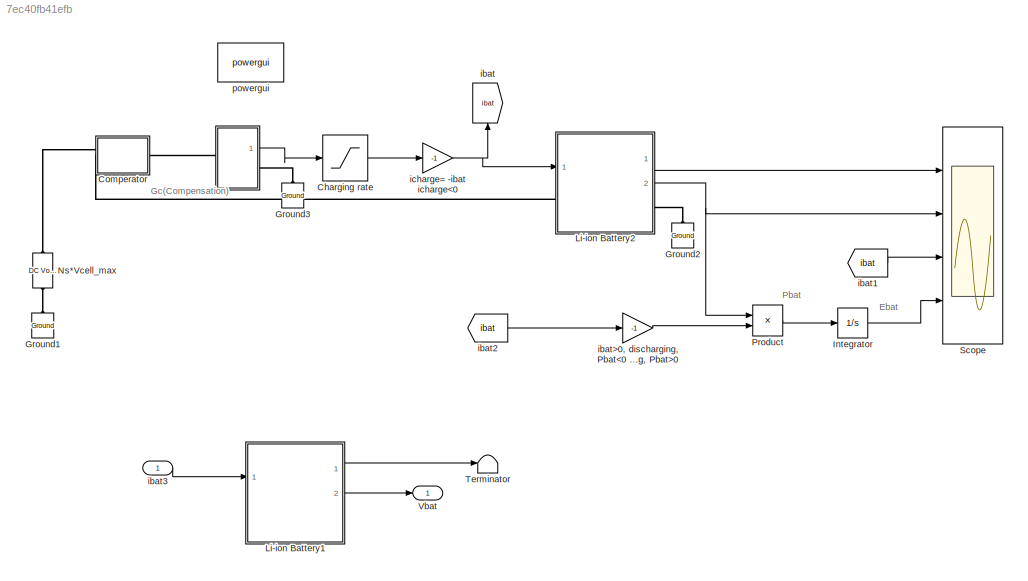
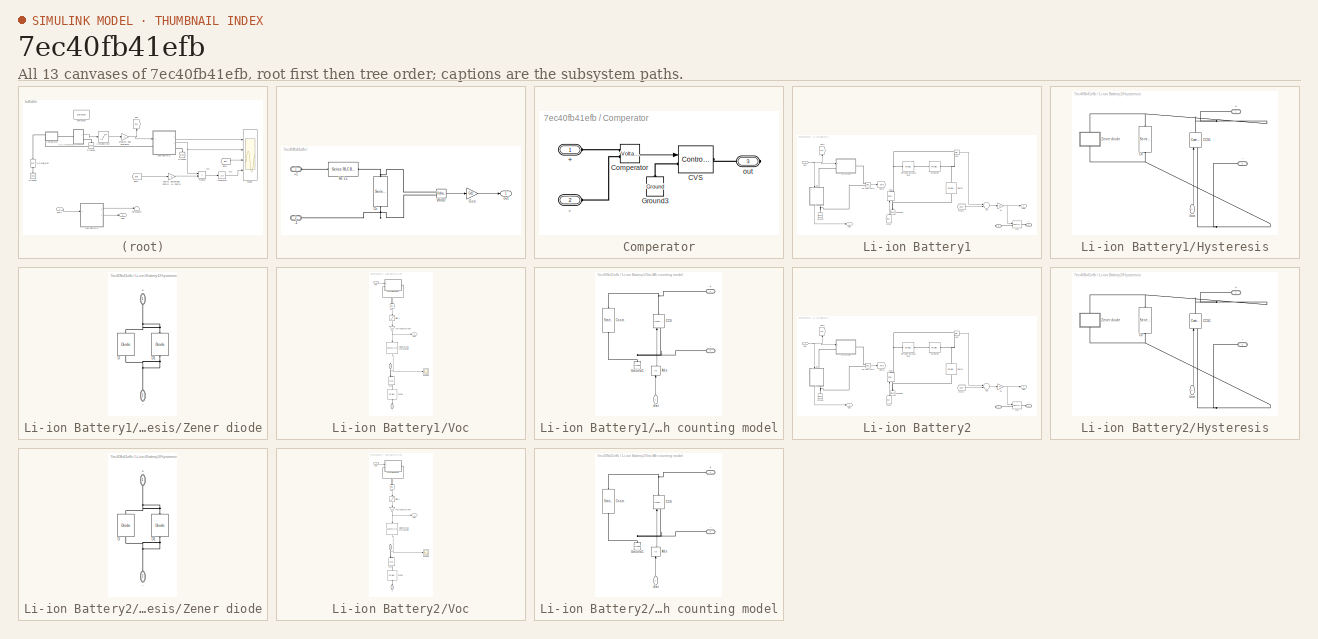
[diagram: thumbnail index - all 13 canvases of the model, root first then tree order]
MODEL slx_7ec40fb41efb
KIND model
CONFIG AbsTol = auto
CONFIG FixedStep = auto
CONFIG MaxStep = auto
CONFIG MinStep = auto
CONFIG RelTol = 1e-3
CONFIG SampleTimeConstraint = Unconstrained
CONFIG Solver = VariableStepAuto
CONFIG SolverMode = Auto
CONFIG SolverName = VariableStepAuto
CONFIG StartTime = 0.0
CONFIG StopTime = 6000
BLOCK [SubSystem]   
  Ports = [0, 1, 0, 0, 0, 1, 1]
  RequestExecContextInheritance = off
  Variant = off
BLOCK [PMIOPort]   /+1
  Port = 1
  Side = Left
BLOCK [PMIOPort]   /-1
  Port = 2
  Side = Right
BLOCK [Reference]   /Cc  REF=powerlib/Elements/Series RLC Branch
  Ports = [0, 0, 0, 0, 0, 1, 1]
  SourceBlock = powerlib/Elements/Series RLC Branch
  SourceType = Series RLC Branch
BLOCK [Gain]   /Gco
  Gain = Gc0
  OutDataTypeStr = Inherit: Inherit via internal rule
  ParamDataTypeStr = Inherit: Inherit via internal rule
  SaturateOnIntegerOverflow = off
BLOCK [Reference]   /Rc         Lc  REF=powerlib/Elements/Series RLC Branch
  Ports = [0, 0, 0, 0, 0, 1, 1]
  SourceBlock = powerlib/Elements/Series RLC Branch
  SourceType = Series RLC Branch
BLOCK [Reference]   /Vfilter   REF=powerlib/Measurements/Voltage Measurement
  Ports = [0, 1, 0, 0, 0, 2]
  SourceBlock = powerlib/Measurements/Voltage Measurement
  SourceType = Voltage Measurement
  UserDataPersistent = on
BLOCK [Outport]   /out 
  IconDisplay = Port number
BLOCK [Saturate] Charging rate
  InputPortMap = u0
  LowerLimit = 0
  Ports = [1, 1]
  UpperLimit = Crate
BLOCK [SubSystem] Comperator
  Ports = [0, 0, 0, 0, 0, 2, 1]
  RequestExecContextInheritance = off
  Variant = off
BLOCK [PMIOPort] Comperator/+
  Port = 1
  Side = Left
BLOCK [PMIOPort] Comperator/-
  Port = 2
  Side = Left
BLOCK [Reference] Comperator/CVS  REF=powerlib/Electrical
Sources/Controlled Voltage Source
  Ports = [1, 0, 0, 0, 0, 1, 1]
  SourceBlock = powerlib/Electrical\nSources/Controlled Voltage Source
  SourceType = Controlled Voltage Source
BLOCK [Reference] Comperator/Comperator  REF=powerlib/Measurements/Voltage Measurement
  Ports = [0, 1, 0, 0, 0, 2]
  SourceBlock = powerlib/Measurements/Voltage Measurement
  SourceType = Voltage Measurement
  UserDataPersistent = on
BLOCK [Reference] Comperator/Ground3  REF=powerlib/Elements/Ground
  Ports = [0, 0, 0, 0, 0, 1]
  SourceBlock = powerlib/Elements/Ground
  SourceType = Ground
BLOCK [PMIOPort] Comperator/out
  Port = 3
  Side = Right
BLOCK [Reference] Ground1  REF=powerlib/Elements/Ground
  Ports = [0, 0, 0, 0, 0, 1]
  SourceBlock = powerlib/Elements/Ground
  SourceType = Ground
BLOCK [Reference] Ground2  REF=powerlib/Elements/Ground
  Ports = [0, 0, 0, 0, 0, 1]
  SourceBlock = powerlib/Elements/Ground
  SourceType = Ground
BLOCK [Reference] Ground3  REF=powerlib/Elements/Ground
  Ports = [0, 0, 0, 0, 0, 1]
  SourceBlock = powerlib/Elements/Ground
  SourceType = Ground
BLOCK [Integrator] Integrator
  Ports = [1, 1]
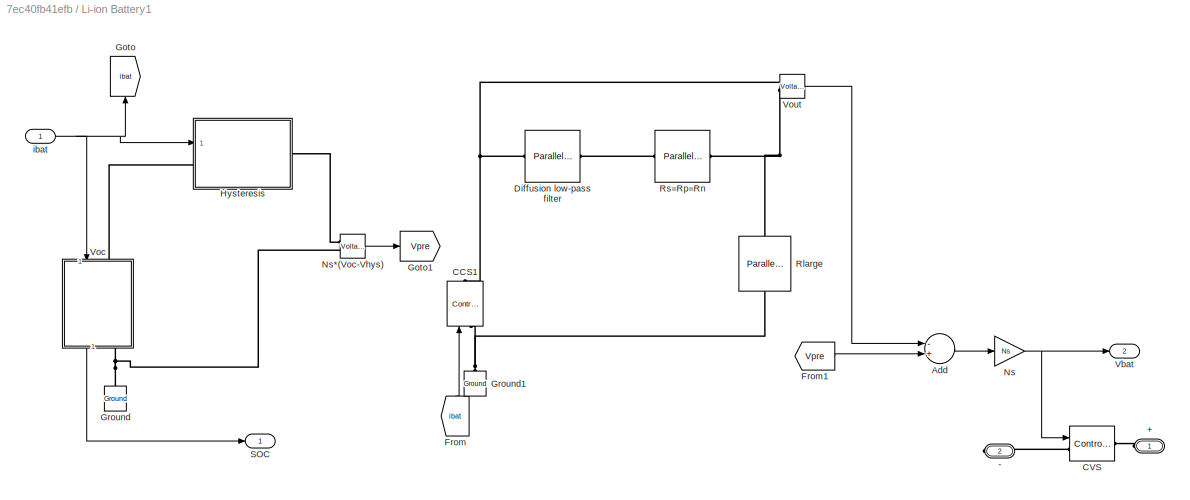
BLOCK [SubSystem] Li-ion Battery1
  Ports = [1, 2, 0, 0, 0, 1, 1]
  RequestExecContextInheritance = off
  Variant = off
BLOCK [PMIOPort] Li-ion Battery1/+
  Port = 1
  Side = Left
BLOCK [PMIOPort] Li-ion Battery1/-
  Port = 2
  Side = Right
BLOCK [Sum] Li-ion Battery1/Add
  InputSameDT = off
  Inputs = -+
  OutDataTypeStr = Inherit: Inherit via internal rule
  Ports = [2, 1]
  SaturateOnIntegerOverflow = off
BLOCK [Reference] Li-ion Battery1/CCS1  REF=powerlib/Electrical
Sources/Controlled Current Source
  Ports = [1, 0, 0, 0, 0, 1, 1]
  SourceBlock = powerlib/Electrical\nSources/Controlled Current Source
  SourceType = Controlled Current Source
BLOCK [Reference] Li-ion Battery1/CVS  REF=powerlib/Electrical
Sources/Controlled Voltage Source
  Ports = [1, 0, 0, 0, 0, 1, 1]
  SourceBlock = powerlib/Electrical\nSources/Controlled Voltage Source
  SourceType = Controlled Voltage Source
BLOCK [Reference] Li-ion Battery1/Diffusion low-pass filter  REF=powerlib/Elements/Parallel RLC Branch
  AttributesFormatString = \n
  Ports = [0, 0, 0, 0, 0, 1, 1]
  SourceBlock = powerlib/Elements/Parallel RLC Branch
  SourceType = Parallel RLC Branch
BLOCK [From] Li-ion Battery1/From
  GotoTag = ibat
BLOCK [From] Li-ion Battery1/From1
  GotoTag = Vpre
BLOCK [Goto] Li-ion Battery1/Goto
  GotoTag = ibat
BLOCK [Goto] Li-ion Battery1/Goto1
  GotoTag = Vpre
BLOCK [Reference] Li-ion Battery1/Ground  REF=powerlib/Elements/Ground
  Ports = [0, 0, 0, 0, 0, 1]
  SourceBlock = powerlib/Elements/Ground
  SourceType = Ground
BLOCK [Reference] Li-ion Battery1/Ground1  REF=powerlib/Elements/Ground
  Ports = [0, 0, 0, 0, 0, 1]
  SourceBlock = powerlib/Elements/Ground
  SourceType = Ground
BLOCK [SubSystem] Li-ion Battery1/Hysteresis
  Ports = [1, 0, 0, 0, 0, 1, 1]
  RequestExecContextInheritance = off
  Variant = off
BLOCK [PMIOPort] Li-ion Battery1/Hysteresis/+
  Port = 1
  Side = Left
BLOCK [PMIOPort] Li-ion Battery1/Hysteresis/-
  Port = 2
  Side = Right
BLOCK [Reference] Li-ion Battery1/Hysteresis/CCS1  REF=powerlib/Electrical
Sources/Controlled Current Source
  Ports = [1, 0, 0, 0, 0, 1, 1]
  SourceBlock = powerlib/Electrical\nSources/Controlled Current Source
  SourceType = Controlled Current Source
BLOCK [Reference] Li-ion Battery1/Hysteresis/Ch  REF=powerlib/Elements/Series RLC Branch
  Ports = [0, 0, 0, 0, 0, 1, 1]
  SourceBlock = powerlib/Elements/Series RLC Branch
  SourceType = Series RLC Branch
BLOCK [SubSystem] Li-ion Battery1/Hysteresis/Zener diode
  Ports = [0, 0, 0, 0, 0, 1, 1]
  RequestExecContextInheritance = off
  Variant = off
BLOCK [PMIOPort] Li-ion Battery1/Hysteresis/Zener diode/+
  Port = 1
  Side = Left
BLOCK [PMIOPort] Li-ion Battery1/Hysteresis/Zener diode/-
  Port = 2
  Side = Right
BLOCK [Reference] Li-ion Battery1/Hysteresis/Zener diode/D  REF=powerlib/Power
Electronics/Diode
  Ports = [0, 0, 0, 0, 0, 1, 1]
  SourceBlock = powerlib/Power\nElectronics/Diode
  SourceType = Diode
BLOCK [Reference] Li-ion Battery1/Hysteresis/Zener diode/D1  REF=powerlib/Power
Electronics/Diode
  Ports = [0, 0, 0, 0, 0, 1, 1]
  SourceBlock = powerlib/Power\nElectronics/Diode
  SourceType = Diode
BLOCK [Inport] Li-ion Battery1/Hysteresis/ibat
  IconDisplay = Port number
BLOCK [Gain] Li-ion Battery1/Ns
  Gain = Ns
  OutDataTypeStr = Inherit: Inherit via internal rule
  ParamDataTypeStr = Inherit: Inherit via internal rule
  SaturateOnIntegerOverflow = off
BLOCK [Reference] Li-ion Battery1/Ns*(Voc-Vhys)  REF=powerlib/Measurements/Voltage Measurement
  Ports = [0, 1, 0, 0, 0, 2]
  SourceBlock = powerlib/Measurements/Voltage Measurement
  SourceType = Voltage Measurement
  UserDataPersistent = on
BLOCK [Reference] Li-ion Battery1/Rlarge  REF=powerlib/Elements/Parallel RLC Branch
  AttributesFormatString = \n
  Ports = [0, 0, 0, 0, 0, 1, 1]
  SourceBlock = powerlib/Elements/Parallel RLC Branch
  SourceType = Parallel RLC Branch
BLOCK [Reference] Li-ion Battery1/Rs=Rp=Rn  REF=powerlib/Elements/Parallel RLC Branch
  AttributesFormatString = \n
  Ports = [0, 0, 0, 0, 0, 1, 1]
  SourceBlock = powerlib/Elements/Parallel RLC Branch
  SourceType = Parallel RLC Branch
BLOCK [Outport] Li-ion Battery1/SOC
  IconDisplay = Port number
BLOCK [Outport] Li-ion Battery1/Vbat
  IconDisplay = Port number
  Port = 2
BLOCK [SubSystem] Li-ion Battery1/Voc
  Ports = [1, 1, 0, 0, 0, 1, 1]
  RequestExecContextInheritance = off
  Variant = off
BLOCK [PMIOPort] Li-ion Battery1/Voc/+
  Port = 1
  Side = Left
BLOCK [PMIOPort] Li-ion Battery1/Voc/-
  Port = 2
  Side = Right
BLOCK [SubSystem] Li-ion Battery1/Voc/Ah counting model
  Ports = [1, 0, 0, 0, 0, 1, 1]
  RequestExecContextInheritance = off
  Variant = off
BLOCK [PMIOPort] Li-ion Battery1/Voc/Ah counting model/+
  Port = 1
  Side = Left
BLOCK [PMIOPort] Li-ion Battery1/Voc/Ah counting model/-
  Port = 2
  Side = Right
BLOCK [Abs] Li-ion Battery1/Voc/Ah counting model/Abs
  SaturateOnIntegerOverflow = off
BLOCK [Reference] Li-ion Battery1/Voc/Ah counting model/CCS  REF=powerlib/Electrical
Sources/Controlled Current Source
  Ports = [1, 0, 0, 0, 0, 1, 1]
  SourceBlock = powerlib/Electrical\nSources/Controlled Current Source
  SourceType = Controlled Current Source
BLOCK [Reference] Li-ion Battery1/Voc/Ah counting model/Cnom  REF=powerlib/Elements/Series RLC Branch
  Ports = [0, 0, 0, 0, 0, 1, 1]
  SourceBlock = powerlib/Elements/Series RLC Branch
  SourceType = Series RLC Branch
BLOCK [Reference] Li-ion Battery1/Voc/Ah counting model/Ground1  REF=powerlib/Elements/Ground
  Ports = [0, 0, 0, 0, 0, 1]
  SourceBlock = powerlib/Elements/Ground
  SourceType = Ground
BLOCK [Inport] Li-ion Battery1/Voc/Ah counting model/ibat
  IconDisplay = Port number
BLOCK [Reference] Li-ion Battery1/Voc/CVS  REF=powerlib/Electrical
Sources/Controlled Voltage Source
  Ports = [1, 0, 0, 0, 0, 1, 1]
  SourceBlock = powerlib/Electrical\nSources/Controlled Voltage Source
  SourceType = Controlled Voltage Source
BLOCK [Gain] Li-ion Battery1/Voc/Percent conversion
  Gain = 100
  OutDataTypeStr = Inherit: Inherit via internal rule
  ParamDataTypeStr = Inherit: Inherit via internal rule
  SaturateOnIntegerOverflow = off
BLOCK [Reference] Li-ion Battery1/Voc/Rsmall  REF=powerlib/Elements/Parallel RLC Branch
  AttributesFormatString = \n
  Ports = [0, 0, 0, 0, 0, 1, 1]
  SourceBlock = powerlib/Elements/Parallel RLC Branch
  SourceType = Parallel RLC Branch
BLOCK [Outport] Li-ion Battery1/Voc/SOC
  IconDisplay = Port number
BLOCK [Scope] Li-ion Battery1/Voc/Scope2
  Ports = [1]
  ScopeSpecificationString = C++SS(StrPVP('SaveName','ScopeData1'),StrPVP('SaveName','ScopeData2'),StrPVP('SaveName','ScopeData3'),StrPVP('LimitDataPoints','on'),StrPVP('DataFormat','Array'),StrPVP('Decimation','1'),StrPVP('BlockParamSampleInput','off'))
BLOCK [Lookup_n-D] Li-ion Battery1/Voc/Voltage vs SOC characteristic
  BreakpointsForDimension1 = [0:9900]/100
  InternalRulePriority = Speed
  NumberOfTableDimensions = 1
  Ports = [1, 1]
  RndMeth = Simplest
  Table = V_soc
BLOCK [Reference] Li-ion Battery1/Voc/Vz  REF=powerlib/Measurements/Voltage Measurement
  Ports = [0, 1, 0, 0, 0, 2]
  SourceBlock = powerlib/Measurements/Voltage Measurement
  SourceType = Voltage Measurement
  UserDataPersistent = on
BLOCK [Inport] Li-ion Battery1/Voc/ibat
  IconDisplay = Port number
BLOCK [Saturate] Li-ion Battery1/Voc/limit 0-1
  InputPortMap = u0
  LowerLimit = 0
  Ports = [1, 1]
  UpperLimit = SOC_1
BLOCK [Reference] Li-ion Battery1/Vout  REF=powerlib/Measurements/Voltage Measurement
  Ports = [0, 1, 0, 0, 0, 2]
  SourceBlock = powerlib/Measurements/Voltage Measurement
  SourceType = Voltage Measurement
  UserDataPersistent = on
BLOCK [Inport] Li-ion Battery1/ibat
  IconDisplay = Port number
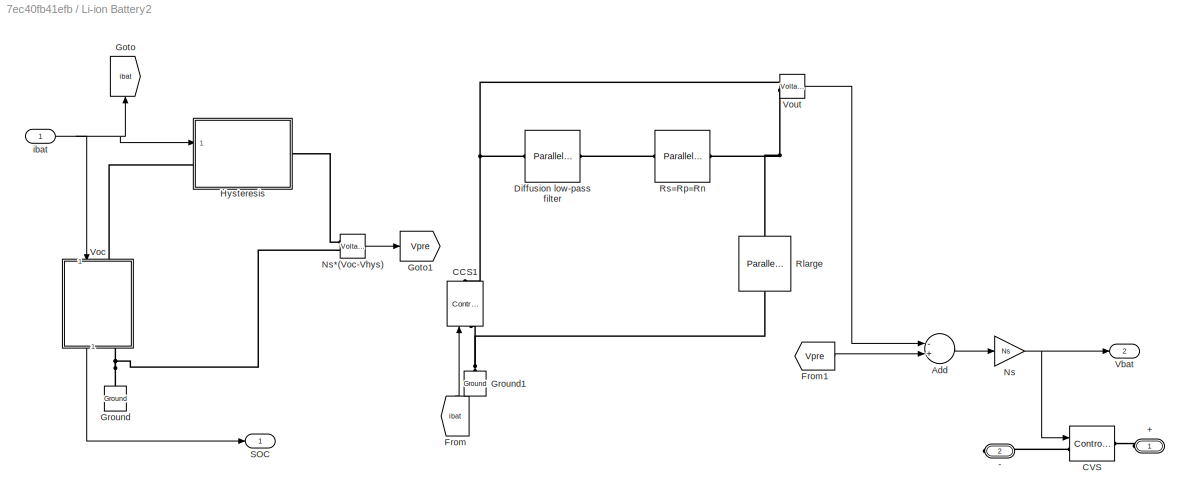
BLOCK [SubSystem] Li-ion Battery2
  Ports = [1, 2, 0, 0, 0, 1, 1]
  RequestExecContextInheritance = off
  Variant = off
BLOCK [PMIOPort] Li-ion Battery2/+
  Port = 1
  Side = Left
BLOCK [PMIOPort] Li-ion Battery2/-
  Port = 2
  Side = Right
BLOCK [Sum] Li-ion Battery2/Add
  InputSameDT = off
  Inputs = -+
  OutDataTypeStr = Inherit: Inherit via internal rule
  Ports = [2, 1]
  SaturateOnIntegerOverflow = off
BLOCK [Reference] Li-ion Battery2/CCS1  REF=powerlib/Electrical
Sources/Controlled Current Source
  Ports = [1, 0, 0, 0, 0, 1, 1]
  SourceBlock = powerlib/Electrical\nSources/Controlled Current Source
  SourceType = Controlled Current Source
BLOCK [Reference] Li-ion Battery2/CVS  REF=powerlib/Electrical
Sources/Controlled Voltage Source
  Ports = [1, 0, 0, 0, 0, 1, 1]
  SourceBlock = powerlib/Electrical\nSources/Controlled Voltage Source
  SourceType = Controlled Voltage Source
BLOCK [Reference] Li-ion Battery2/Diffusion low-pass filter  REF=powerlib/Elements/Parallel RLC Branch
  AttributesFormatString = \n
  Ports = [0, 0, 0, 0, 0, 1, 1]
  SourceBlock = powerlib/Elements/Parallel RLC Branch
  SourceType = Parallel RLC Branch
BLOCK [From] Li-ion Battery2/From
  GotoTag = ibat
BLOCK [From] Li-ion Battery2/From1
  GotoTag = Vpre
BLOCK [Goto] Li-ion Battery2/Goto
  GotoTag = ibat
BLOCK [Goto] Li-ion Battery2/Goto1
  GotoTag = Vpre
BLOCK [Reference] Li-ion Battery2/Ground  REF=powerlib/Elements/Ground
  Ports = [0, 0, 0, 0, 0, 1]
  SourceBlock = powerlib/Elements/Ground
  SourceType = Ground
BLOCK [Reference] Li-ion Battery2/Ground1  REF=powerlib/Elements/Ground
  Ports = [0, 0, 0, 0, 0, 1]
  SourceBlock = powerlib/Elements/Ground
  SourceType = Ground
BLOCK [SubSystem] Li-ion Battery2/Hysteresis
  Ports = [1, 0, 0, 0, 0, 1, 1]
  RequestExecContextInheritance = off
  Variant = off
BLOCK [PMIOPort] Li-ion Battery2/Hysteresis/+
  Port = 1
  Side = Left
BLOCK [PMIOPort] Li-ion Battery2/Hysteresis/-
  Port = 2
  Side = Right
BLOCK [Reference] Li-ion Battery2/Hysteresis/CCS1  REF=powerlib/Electrical
Sources/Controlled Current Source
  Ports = [1, 0, 0, 0, 0, 1, 1]
  SourceBlock = powerlib/Electrical\nSources/Controlled Current Source
  SourceType = Controlled Current Source
BLOCK [Reference] Li-ion Battery2/Hysteresis/Ch  REF=powerlib/Elements/Series RLC Branch
  Ports = [0, 0, 0, 0, 0, 1, 1]
  SourceBlock = powerlib/Elements/Series RLC Branch
  SourceType = Series RLC Branch
BLOCK [SubSystem] Li-ion Battery2/Hysteresis/Zener diode
  Ports = [0, 0, 0, 0, 0, 1, 1]
  RequestExecContextInheritance = off
  Variant = off
BLOCK [PMIOPort] Li-ion Battery2/Hysteresis/Zener diode/+
  Port = 1
  Side = Left
BLOCK [PMIOPort] Li-ion Battery2/Hysteresis/Zener diode/-
  Port = 2
  Side = Right
BLOCK [Reference] Li-ion Battery2/Hysteresis/Zener diode/D  REF=powerlib/Power
Electronics/Diode
  Ports = [0, 0, 0, 0, 0, 1, 1]
  SourceBlock = powerlib/Power\nElectronics/Diode
  SourceType = Diode
BLOCK [Reference] Li-ion Battery2/Hysteresis/Zener diode/D1  REF=powerlib/Power
Electronics/Diode
  Ports = [0, 0, 0, 0, 0, 1, 1]
  SourceBlock = powerlib/Power\nElectronics/Diode
  SourceType = Diode
BLOCK [Inport] Li-ion Battery2/Hysteresis/ibat
  IconDisplay = Port number
BLOCK [Gain] Li-ion Battery2/Ns
  Gain = Ns
  OutDataTypeStr = Inherit: Inherit via internal rule
  ParamDataTypeStr = Inherit: Inherit via internal rule
  SaturateOnIntegerOverflow = off
BLOCK [Reference] Li-ion Battery2/Ns*(Voc-Vhys)  REF=powerlib/Measurements/Voltage Measurement
  Ports = [0, 1, 0, 0, 0, 2]
  SourceBlock = powerlib/Measurements/Voltage Measurement
  SourceType = Voltage Measurement
  UserDataPersistent = on
BLOCK [Reference] Li-ion Battery2/Rlarge  REF=powerlib/Elements/Parallel RLC Branch
  AttributesFormatString = \n
  Ports = [0, 0, 0, 0, 0, 1, 1]
  SourceBlock = powerlib/Elements/Parallel RLC Branch
  SourceType = Parallel RLC Branch
BLOCK [Reference] Li-ion Battery2/Rs=Rp=Rn  REF=powerlib/Elements/Parallel RLC Branch
  AttributesFormatString = \n
  Ports = [0, 0, 0, 0, 0, 1, 1]
  SourceBlock = powerlib/Elements/Parallel RLC Branch
  SourceType = Parallel RLC Branch
BLOCK [Outport] Li-ion Battery2/SOC
  IconDisplay = Port number
BLOCK [Outport] Li-ion Battery2/Vbat
  IconDisplay = Port number
  Port = 2
BLOCK [SubSystem] Li-ion Battery2/Voc
  Ports = [1, 1, 0, 0, 0, 1, 1]
  RequestExecContextInheritance = off
  Variant = off
BLOCK [PMIOPort] Li-ion Battery2/Voc/+
  Port = 1
  Side = Left
BLOCK [PMIOPort] Li-ion Battery2/Voc/-
  Port = 2
  Side = Right
BLOCK [SubSystem] Li-ion Battery2/Voc/Ah counting model
  Ports = [1, 0, 0, 0, 0, 1, 1]
  RequestExecContextInheritance = off
  Variant = off
BLOCK [PMIOPort] Li-ion Battery2/Voc/Ah counting model/+
  Port = 1
  Side = Left
BLOCK [PMIOPort] Li-ion Battery2/Voc/Ah counting model/-
  Port = 2
  Side = Right
BLOCK [Abs] Li-ion Battery2/Voc/Ah counting model/Abs
  SaturateOnIntegerOverflow = off
BLOCK [Reference] Li-ion Battery2/Voc/Ah counting model/CCS  REF=powerlib/Electrical
Sources/Controlled Current Source
  Ports = [1, 0, 0, 0, 0, 1, 1]
  SourceBlock = powerlib/Electrical\nSources/Controlled Current Source
  SourceType = Controlled Current Source
BLOCK [Reference] Li-ion Battery2/Voc/Ah counting model/Cnom  REF=powerlib/Elements/Series RLC Branch
  Ports = [0, 0, 0, 0, 0, 1, 1]
  SourceBlock = powerlib/Elements/Series RLC Branch
  SourceType = Series RLC Branch
BLOCK [Reference] Li-ion Battery2/Voc/Ah counting model/Ground1  REF=powerlib/Elements/Ground
  Ports = [0, 0, 0, 0, 0, 1]
  SourceBlock = powerlib/Elements/Ground
  SourceType = Ground
BLOCK [Inport] Li-ion Battery2/Voc/Ah counting model/ibat
  IconDisplay = Port number
BLOCK [Reference] Li-ion Battery2/Voc/CVS  REF=powerlib/Electrical
Sources/Controlled Voltage Source
  Ports = [1, 0, 0, 0, 0, 1, 1]
  SourceBlock = powerlib/Electrical\nSources/Controlled Voltage Source
  SourceType = Controlled Voltage Source
BLOCK [Gain] Li-ion Battery2/Voc/Percent conversion
  Gain = 100
  OutDataTypeStr = Inherit: Inherit via internal rule
  ParamDataTypeStr = Inherit: Inherit via internal rule
  SaturateOnIntegerOverflow = off
BLOCK [Reference] Li-ion Battery2/Voc/Rsmall  REF=powerlib/Elements/Parallel RLC Branch
  AttributesFormatString = \n
  Ports = [0, 0, 0, 0, 0, 1, 1]
  SourceBlock = powerlib/Elements/Parallel RLC Branch
  SourceType = Parallel RLC Branch
BLOCK [Outport] Li-ion Battery2/Voc/SOC
  IconDisplay = Port number
BLOCK [Scope] Li-ion Battery2/Voc/Scope2
  Ports = [1]
  ScopeSpecificationString = C++SS(StrPVP('SaveName','ScopeData1'),StrPVP('SaveName','ScopeData2'),StrPVP('SaveName','ScopeData3'),StrPVP('LimitDataPoints','on'),StrPVP('DataFormat','Array'),StrPVP('Decimation','1'),StrPVP('BlockParamSampleInput','off'))
BLOCK [Lookup_n-D] Li-ion Battery2/Voc/Voltage vs SOC characteristic
  BreakpointsForDimension1 = [0:9900]/100
  InternalRulePriority = Speed
  NumberOfTableDimensions = 1
  Ports = [1, 1]
  RndMeth = Simplest
  Table = V_soc
BLOCK [Reference] Li-ion Battery2/Voc/Vz  REF=powerlib/Measurements/Voltage Measurement
  Ports = [0, 1, 0, 0, 0, 2]
  SourceBlock = powerlib/Measurements/Voltage Measurement
  SourceType = Voltage Measurement
  UserDataPersistent = on
BLOCK [Inport] Li-ion Battery2/Voc/ibat
  IconDisplay = Port number
BLOCK [Saturate] Li-ion Battery2/Voc/limit 0-1
  InputPortMap = u0
  LowerLimit = 0
  Ports = [1, 1]
  UpperLimit = SOC_1
BLOCK [Reference] Li-ion Battery2/Vout  REF=powerlib/Measurements/Voltage Measurement
  Ports = [0, 1, 0, 0, 0, 2]
  SourceBlock = powerlib/Measurements/Voltage Measurement
  SourceType = Voltage Measurement
  UserDataPersistent = on
BLOCK [Inport] Li-ion Battery2/ibat
  IconDisplay = Port number
BLOCK [Reference] Ns*Vcell_max  REF=powerlib/Electrical
Sources/DC Voltage Source
  Ports = [0, 0, 0, 0, 0, 1, 1]
  SourceBlock = powerlib/Electrical\nSources/DC Voltage Source
  SourceType = DC Voltage Source
BLOCK [Product] Product
  InputSameDT = off
  OutDataTypeStr = Inherit: Inherit via internal rule
  Ports = [2, 1]
  RndMeth = Floor
  SaturateOnIntegerOverflow = off
BLOCK [Scope] Scope
  NumInputPorts = 4
  Ports = [4]
  ScopeSpecificationString = Simulink.scopes.TimeScopeBlockCfg('CurrentConfiguration', extmgr.ConfigurationSet(extmgr.Configuration('Core','General UI',true),extmgr.Configuration('Core','Source UI',true),extmgr.Configuration('Sources','WiredSimulink',true),extmgr.Configuration('Visuals','Time Domain',true,'SerializedDisplays',{struct('MinYLimReal','12.5','MaxYLimReal','87.5','YLabelReal','','MinYLimMag','364.1179','MaxYLimMag...<+3417ch>
BLOCK [Terminator] Terminator
BLOCK [Outport] Vbat
  IconDisplay = Port number
BLOCK [Goto] ibat
  GotoTag = ibat
BLOCK [From] ibat1
  GotoTag = ibat
BLOCK [From] ibat2
  GotoTag = ibat
BLOCK [Inport] ibat3
  IconDisplay = Port number
BLOCK [Gain] ibat>0, discharging, Pbat<0 ibat<0, charging, Pbat>0
  Gain = -1
  OutDataTypeStr = Inherit: Inherit via internal rule
  ParamDataTypeStr = Inherit: Inherit via internal rule
  SaturateOnIntegerOverflow = off
BLOCK [Gain] icharge= -ibat icharge<0
  Gain = -1
  OutDataTypeStr = Inherit: Inherit via internal rule
  ParamDataTypeStr = Inherit: Inherit via internal rule
  SaturateOnIntegerOverflow = off
BLOCK [Reference] powergui  REF=powerlib/powergui
  Ports = []
  Priority = 1
  SourceBlock = powerlib/powergui
  SourceType = PSB option menu block
  UserDataPersistent = on
ANNOTATION (root): Gc(Compensation)
ANNOTATION (root): Ebat
ANNOTATION (root): Pbat
LINE   /Gco:1 ->   /out :1
LINE   /Vfilter :1 ->   /Gco:1
LINE   :1 -> Charging rate:1
LINE Charging rate:1 -> icharge= -ibat icharge<0:1
LINE Comperator/Comperator:1 -> Comperator/CVS:1
LINE Integrator:1 -> Scope:4
LINE Li-ion Battery1/Add:1 -> Li-ion Battery1/Ns:1
LINE Li-ion Battery1/From1:1 -> Li-ion Battery1/Add:2
LINE Li-ion Battery1/From:1 -> Li-ion Battery1/CCS1:1
LINE Li-ion Battery1/Hysteresis/ibat:1 -> Li-ion Battery1/Hysteresis/CCS1:1
LINE Li-ion Battery1/Ns*(Voc-Vhys):1 -> Li-ion Battery1/Goto1:1
NET Li-ion Battery1/Ns:1 -> Li-ion Battery1/CVS:1, Li-ion Battery1/Vbat:1
LINE Li-ion Battery1/Voc/Ah counting model/Abs:1 -> Li-ion Battery1/Voc/Ah counting model/CCS:1
LINE Li-ion Battery1/Voc/Ah counting model/ibat:1 -> Li-ion Battery1/Voc/Ah counting model/Abs:1
NET Li-ion Battery1/Voc/Percent conversion:1 -> Li-ion Battery1/Voc/SOC:1, Li-ion Battery1/Voc/Voltage vs SOC characteristic:1
NET Li-ion Battery1/Voc/Voltage vs SOC characteristic:1 -> Li-ion Battery1/Voc/CVS:1, Li-ion Battery1/Voc/Scope2:1
LINE Li-ion Battery1/Voc/Vz:1 -> Li-ion Battery1/Voc/limit 0-1:1
LINE Li-ion Battery1/Voc/ibat:1 -> Li-ion Battery1/Voc/Ah counting model:1
LINE Li-ion Battery1/Voc/limit 0-1:1 -> Li-ion Battery1/Voc/Percent conversion:1
LINE Li-ion Battery1/Voc:1 -> Li-ion Battery1/SOC:1
LINE Li-ion Battery1/Vout:1 -> Li-ion Battery1/Add:1
NET Li-ion Battery1/ibat:1 -> Li-ion Battery1/Goto:1, Li-ion Battery1/Hysteresis:1, Li-ion Battery1/Voc:1
LINE Li-ion Battery1:1 -> Terminator:1
LINE Li-ion Battery1:2 -> Vbat:1
LINE Li-ion Battery2/Add:1 -> Li-ion Battery2/Ns:1
LINE Li-ion Battery2/From1:1 -> Li-ion Battery2/Add:2
LINE Li-ion Battery2/From:1 -> Li-ion Battery2/CCS1:1
LINE Li-ion Battery2/Hysteresis/ibat:1 -> Li-ion Battery2/Hysteresis/CCS1:1
LINE Li-ion Battery2/Ns*(Voc-Vhys):1 -> Li-ion Battery2/Goto1:1
NET Li-ion Battery2/Ns:1 -> Li-ion Battery2/CVS:1, Li-ion Battery2/Vbat:1
LINE Li-ion Battery2/Voc/Ah counting model/Abs:1 -> Li-ion Battery2/Voc/Ah counting model/CCS:1
LINE Li-ion Battery2/Voc/Ah counting model/ibat:1 -> Li-ion Battery2/Voc/Ah counting model/Abs:1
NET Li-ion Battery2/Voc/Percent conversion:1 -> Li-ion Battery2/Voc/SOC:1, Li-ion Battery2/Voc/Voltage vs SOC characteristic:1
NET Li-ion Battery2/Voc/Voltage vs SOC characteristic:1 -> Li-ion Battery2/Voc/CVS:1, Li-ion Battery2/Voc/Scope2:1
LINE Li-ion Battery2/Voc/Vz:1 -> Li-ion Battery2/Voc/limit 0-1:1
LINE Li-ion Battery2/Voc/ibat:1 -> Li-ion Battery2/Voc/Ah counting model:1
LINE Li-ion Battery2/Voc/limit 0-1:1 -> Li-ion Battery2/Voc/Percent conversion:1
LINE Li-ion Battery2/Voc:1 -> Li-ion Battery2/SOC:1
LINE Li-ion Battery2/Vout:1 -> Li-ion Battery2/Add:1
NET Li-ion Battery2/ibat:1 -> Li-ion Battery2/Goto:1, Li-ion Battery2/Hysteresis:1, Li-ion Battery2/Voc:1
LINE Li-ion Battery2:1 -> Scope:1
NET Li-ion Battery2:2 -> Product:1, Scope:2
LINE Product:1 -> Integrator:1
LINE ibat1:1 -> Scope:3
LINE ibat2:1 -> ibat>0, discharging, Pbat<0 ibat<0, charging, Pbat>0:1
LINE ibat3:1 -> Li-ion Battery1:1
LINE ibat>0, discharging, Pbat<0 ibat<0, charging, Pbat>0:1 -> Product:2
NET icharge= -ibat icharge<0:1 -> Li-ion Battery2:1, ibat:1
PLINE   /+1:RConn1 --   /Rc         Lc:LConn1
PNET net1:   /-1:RConn1 --   /Cc:RConn1 --   /Vfilter :LConn2
PNET net2:   /Cc:LConn1 --   /Rc         Lc:RConn1 --   /Vfilter :LConn1
PLINE   :LConn1 -- Comperator:RConn1
PLINE   :RConn1 -- Ground3:LConn1
PLINE Comperator/+:RConn1 -- Comperator/Comperator:LConn1
PLINE Comperator/-:RConn1 -- Comperator/Comperator:LConn2
PLINE Comperator/CVS:LConn1 -- Comperator/Ground3:LConn1
PLINE Comperator/CVS:RConn1 -- Comperator/out:RConn1
PLINE Comperator:LConn1 -- Ns*Vcell_max:RConn1
PLINE Comperator:LConn2 -- Li-ion Battery2:LConn1
PLINE Ground1:LConn1 -- Ns*Vcell_max:LConn1
PLINE Ground2:LConn1 -- Li-ion Battery2:RConn1
PLINE Li-ion Battery1/+:RConn1 -- Li-ion Battery1/CVS:RConn1
PLINE Li-ion Battery1/-:RConn1 -- Li-ion Battery1/CVS:LConn1
PNET net3: Li-ion Battery1/CCS1:LConn1 -- Li-ion Battery1/Ground1:LConn1 -- Li-ion Battery1/Rlarge:RConn1
PNET net4: Li-ion Battery1/CCS1:RConn1 -- Li-ion Battery1/Diffusion low-pass filter:LConn1 -- Li-ion Battery1/Vout:LConn1
PLINE Li-ion Battery1/Diffusion low-pass filter:RConn1 -- Li-ion Battery1/Rs=Rp=Rn:LConn1
PNET net5: Li-ion Battery1/Ground:LConn1 -- Li-ion Battery1/Ns*(Voc-Vhys):LConn2 -- Li-ion Battery1/Voc:RConn1
PNET net6: Li-ion Battery1/Hysteresis/+:RConn1 -- Li-ion Battery1/Hysteresis/CCS1:RConn1 -- Li-ion Battery1/Hysteresis/Ch:LConn1 -- Li-ion Battery1/Hysteresis/Zener diode:LConn1
PNET net7: Li-ion Battery1/Hysteresis/-:RConn1 -- Li-ion Battery1/Hysteresis/CCS1:LConn1 -- Li-ion Battery1/Hysteresis/Ch:RConn1 -- Li-ion Battery1/Hysteresis/Zener diode:RConn1
PNET net8: Li-ion Battery1/Hysteresis/Zener diode/+:RConn1 -- Li-ion Battery1/Hysteresis/Zener diode/D1:LConn1 -- Li-ion Battery1/Hysteresis/Zener diode/D:RConn1
PNET net9: Li-ion Battery1/Hysteresis/Zener diode/-:RConn1 -- Li-ion Battery1/Hysteresis/Zener diode/D1:RConn1 -- Li-ion Battery1/Hysteresis/Zener diode/D:LConn1
PLINE Li-ion Battery1/Hysteresis:LConn1 -- Li-ion Battery1/Voc:LConn1
PLINE Li-ion Battery1/Hysteresis:RConn1 -- Li-ion Battery1/Ns*(Voc-Vhys):LConn1
PNET net10: Li-ion Battery1/Rlarge:LConn1 -- Li-ion Battery1/Rs=Rp=Rn:RConn1 -- Li-ion Battery1/Vout:LConn2
PLINE Li-ion Battery1/Voc/+:RConn1 -- Li-ion Battery1/Voc/Rsmall:RConn1
PLINE Li-ion Battery1/Voc/-:RConn1 -- Li-ion Battery1/Voc/CVS:LConn1
PNET net11: Li-ion Battery1/Voc/Ah counting model/+:RConn1 -- Li-ion Battery1/Voc/Ah counting model/CCS:RConn1 -- Li-ion Battery1/Voc/Ah counting model/Cnom:LConn1
PNET net12: Li-ion Battery1/Voc/Ah counting model/-:RConn1 -- Li-ion Battery1/Voc/Ah counting model/CCS:LConn1 -- Li-ion Battery1/Voc/Ah counting model/Cnom:RConn1 -- Li-ion Battery1/Voc/Ah counting model/Ground1:LConn1
PLINE Li-ion Battery1/Voc/Ah counting model:LConn1 -- Li-ion Battery1/Voc/Vz:LConn1
PLINE Li-ion Battery1/Voc/Ah counting model:RConn1 -- Li-ion Battery1/Voc/Vz:LConn2
PLINE Li-ion Battery1/Voc/CVS:RConn1 -- Li-ion Battery1/Voc/Rsmall:LConn1
PLINE Li-ion Battery2/+:RConn1 -- Li-ion Battery2/CVS:RConn1
PLINE Li-ion Battery2/-:RConn1 -- Li-ion Battery2/CVS:LConn1
PNET net13: Li-ion Battery2/CCS1:LConn1 -- Li-ion Battery2/Ground1:LConn1 -- Li-ion Battery2/Rlarge:RConn1
PNET net14: Li-ion Battery2/CCS1:RConn1 -- Li-ion Battery2/Diffusion low-pass filter:LConn1 -- Li-ion Battery2/Vout:LConn1
PLINE Li-ion Battery2/Diffusion low-pass filter:RConn1 -- Li-ion Battery2/Rs=Rp=Rn:LConn1
PNET net15: Li-ion Battery2/Ground:LConn1 -- Li-ion Battery2/Ns*(Voc-Vhys):LConn2 -- Li-ion Battery2/Voc:RConn1
PNET net16: Li-ion Battery2/Hysteresis/+:RConn1 -- Li-ion Battery2/Hysteresis/CCS1:RConn1 -- Li-ion Battery2/Hysteresis/Ch:LConn1 -- Li-ion Battery2/Hysteresis/Zener diode:LConn1
PNET net17: Li-ion Battery2/Hysteresis/-:RConn1 -- Li-ion Battery2/Hysteresis/CCS1:LConn1 -- Li-ion Battery2/Hysteresis/Ch:RConn1 -- Li-ion Battery2/Hysteresis/Zener diode:RConn1
PNET net18: Li-ion Battery2/Hysteresis/Zener diode/+:RConn1 -- Li-ion Battery2/Hysteresis/Zener diode/D1:LConn1 -- Li-ion Battery2/Hysteresis/Zener diode/D:RConn1
PNET net19: Li-ion Battery2/Hysteresis/Zener diode/-:RConn1 -- Li-ion Battery2/Hysteresis/Zener diode/D1:RConn1 -- Li-ion Battery2/Hysteresis/Zener diode/D:LConn1
PLINE Li-ion Battery2/Hysteresis:LConn1 -- Li-ion Battery2/Voc:LConn1
PLINE Li-ion Battery2/Hysteresis:RConn1 -- Li-ion Battery2/Ns*(Voc-Vhys):LConn1
PNET net20: Li-ion Battery2/Rlarge:LConn1 -- Li-ion Battery2/Rs=Rp=Rn:RConn1 -- Li-ion Battery2/Vout:LConn2
PLINE Li-ion Battery2/Voc/+:RConn1 -- Li-ion Battery2/Voc/Rsmall:RConn1
PLINE Li-ion Battery2/Voc/-:RConn1 -- Li-ion Battery2/Voc/CVS:LConn1
PNET net21: Li-ion Battery2/Voc/Ah counting model/+:RConn1 -- Li-ion Battery2/Voc/Ah counting model/CCS:RConn1 -- Li-ion Battery2/Voc/Ah counting model/Cnom:LConn1
PNET net22: Li-ion Battery2/Voc/Ah counting model/-:RConn1 -- Li-ion Battery2/Voc/Ah counting model/CCS:LConn1 -- Li-ion Battery2/Voc/Ah counting model/Cnom:RConn1 -- Li-ion Battery2/Voc/Ah counting model/Ground1:LConn1
PLINE Li-ion Battery2/Voc/Ah counting model:LConn1 -- Li-ion Battery2/Voc/Vz:LConn1
PLINE Li-ion Battery2/Voc/Ah counting model:RConn1 -- Li-ion Battery2/Voc/Vz:LConn2
PLINE Li-ion Battery2/Voc/CVS:RConn1 -- Li-ion Battery2/Voc/Rsmall:LConn1
note: NET lines group one-source signal fan-out (src -> all destinations, sorted); 1:1 wires keep LINE; PNET lines group multi-terminal physical nets as a canonical sorted terminal list (undirected conserving connections); 2-terminal nets keep the pairwise PLINE form
